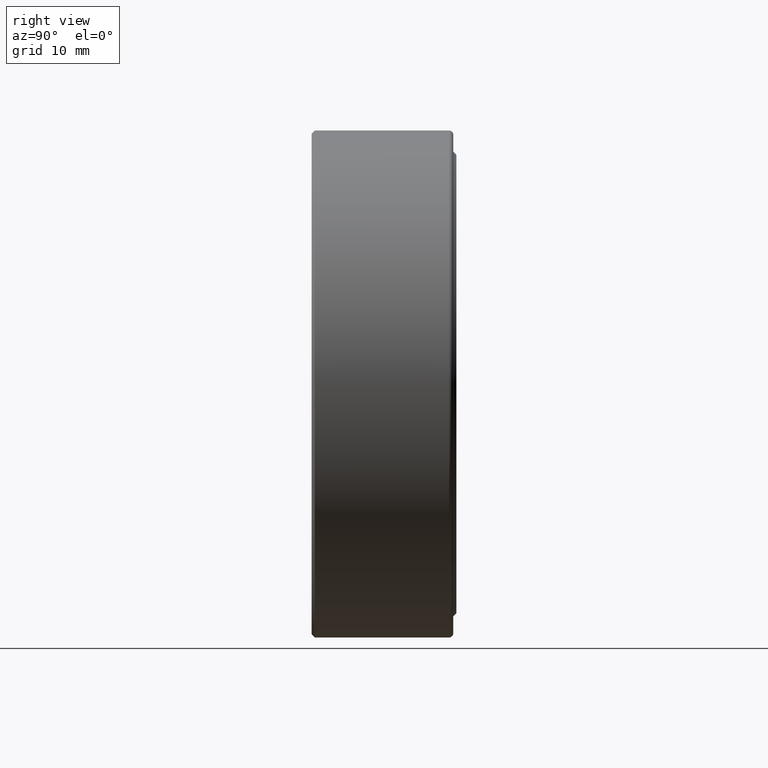
[diagram: clean part render]
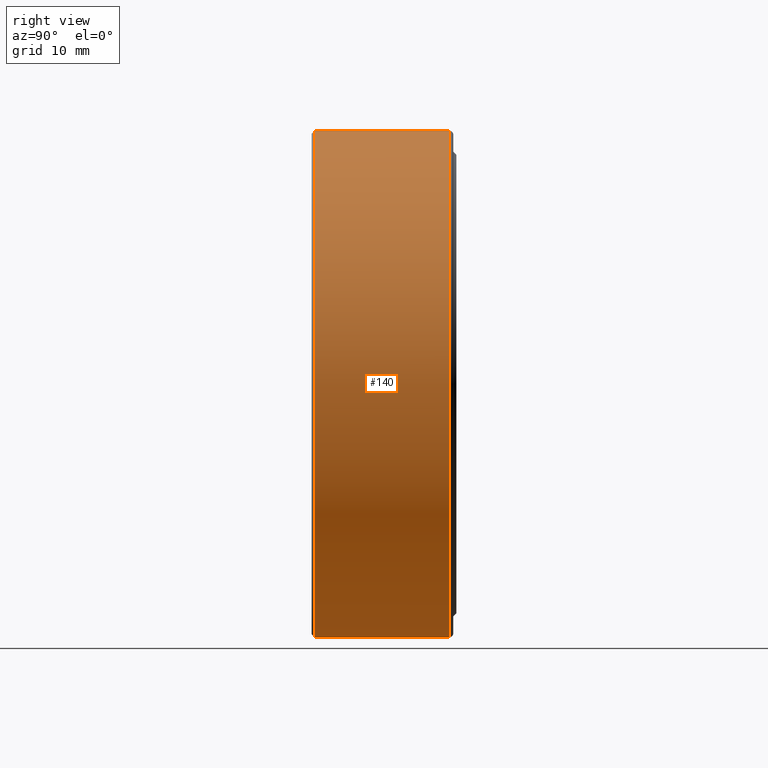
[diagram: same view with one face highlighted and labeled with its STEP entity id]
A machine part, right view. The second image highlights one B-rep face of the part: STEP entity #140.
In plain terms, the highlighted cylindrical surface (bore or boss wall) has radius 30.5594 mm, axis along (-0, 1, -0).
Its self-contained STEP definition (entity closure, byte-faithful):
#23 = DIRECTION ( 'NONE',  ( 0.0000000000000000000, 0.0000000000000000000, 1.000000000000000000 ) ) ;
#89 = DIRECTION ( 'NONE',  ( 0.0000000000000000000, 0.0000000000000000000, 1.000000000000000000 ) ) ;
#94 = AXIS2_PLACEMENT_3D ( 'NONE', #181, #375, #89 ) ;
#103 = CIRCLE ( 'NONE', #529, 1.203125000000000000 ) ;
#140 = ADVANCED_FACE ( 'NONE', ( #595, #473 ), #265, .T. ) ;
#181 = CARTESIAN_POINT ( 'NONE',  ( 0.0000000000000000000, 0.0000000000000000000, 0.0000000000000000000 ) ) ;
#184 = ORIENTED_EDGE ( 'NONE', *, *, #432, .F. ) ;
#198 = EDGE_LOOP ( 'NONE', ( #544 ) ) ;
#204 = AXIS2_PLACEMENT_3D ( 'NONE', #306, #350, #208 ) ;
#208 = DIRECTION ( 'NONE',  ( 0.0000000000000000000, 0.0000000000000000000, 1.000000000000000000 ) ) ;
#253 = VERTEX_POINT ( 'NONE', #356 ) ;
#262 = EDGE_LOOP ( 'NONE', ( #184 ) ) ;
#265 = CYLINDRICAL_SURFACE ( 'NONE', #94, 1.203125000000000000 ) ;
#306 = CARTESIAN_POINT ( 'NONE',  ( 0.0000000000000000000, 0.6524999999999997500, 0.0000000000000000000 ) ) ;
#312 = CARTESIAN_POINT ( 'NONE',  ( 0.0000000000000000000, 0.01499999999999997700, 1.203125000000000000 ) ) ;
#336 = EDGE_CURVE ( 'NONE', #367, #367, #103, .T. ) ;
#350 = DIRECTION ( 'NONE',  ( -0.0000000000000000000, 1.000000000000000000, -0.0000000000000000000 ) ) ;
#356 = CARTESIAN_POINT ( 'NONE',  ( 0.0000000000000000000, 0.6524999999999997500, 1.203125000000000000 ) ) ;
#367 = VERTEX_POINT ( 'NONE', #312 ) ;
#375 = DIRECTION ( 'NONE',  ( -0.0000000000000000000, 1.000000000000000000, -0.0000000000000000000 ) ) ;
#421 = CIRCLE ( 'NONE', #204, 1.203125000000000000 ) ;
#432 = EDGE_CURVE ( 'NONE', #253, #253, #421, .T. ) ;
#444 = CARTESIAN_POINT ( 'NONE',  ( 0.0000000000000000000, 0.01499999999999997700, 0.0000000000000000000 ) ) ;
#473 = FACE_OUTER_BOUND ( 'NONE', #198, .T. ) ;
#529 = AXIS2_PLACEMENT_3D ( 'NONE', #444, #582, #23 ) ;
#544 = ORIENTED_EDGE ( 'NONE', *, *, #336, .T. ) ;
#582 = DIRECTION ( 'NONE',  ( -0.0000000000000000000, 1.000000000000000000, -0.0000000000000000000 ) ) ;
#595 = FACE_OUTER_BOUND ( 'NONE', #262, .T. ) ;